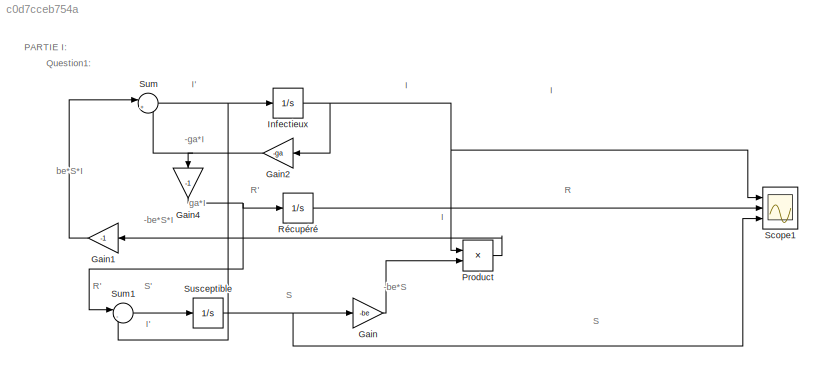
MODEL slx_c0d7cceb754a
KIND model
CONFIG AbsTol = auto
CONFIG EnableMultiTasking = off
CONFIG FixedStep = auto
CONFIG MaxStep = auto
CONFIG MinStep = auto
CONFIG RelTol = 1e-3
CONFIG SampleTimeConstraint = Unconstrained
CONFIG Solver = ode45
CONFIG SolverName = ode45
CONFIG StartTime = 0.0
CONFIG StopTime = 30
BLOCK [Gain] Gain
  Gain = -be
BLOCK [Gain] Gain1
  Gain = -1
  NameLocation = top
BLOCK [Gain] Gain2
  Gain = -ga
  NameLocation = top
BLOCK [Gain] Gain4
  Gain = -1
  NameLocation = left
BLOCK [Integrator] Infectieux
  InitialCondition = i0
  Ports = [1, 1]
BLOCK [Product] Product
  Ports = [2, 1]
BLOCK [Integrator] Récupéré
  InitialCondition = r0
  Ports = [1, 1]
BLOCK [Scope] Scope1
  Floating = off
  NumInputPorts = 3
  Ports = [3]
  ScopeSpecificationString = Simulink.scopes.TimeScopeBlockCfg('CurrentConfiguration', extmgr.ConfigurationSet(extmgr.Configuration('Core','General UI',true),extmgr.Configuration('Core','Source UI',true),extmgr.Configuration('Sources','WiredSimulink',true,'DataLoggingVariableName','ScopeData1'),extmgr.Configuration('Visuals','Time Domain',true,'SerializedDisplays',{struct('MinYLimReal','-0.125','MaxYLimReal','0.33523','YLabel...<+1538ch>
BLOCK [Sum] Sum
  Inputs = |++
  Ports = [2, 1]
BLOCK [Sum] Sum1
  Inputs = |--
  Ports = [2, 1]
BLOCK [Integrator] Susceptible
  InitialCondition = s0
  Ports = [1, 1]
ANNOTATION (root): -be*S
ANNOTATION (root): -be*S*I
ANNOTATION (root): -ga*I
ANNOTATION (root): PARTIE I:
ANNOTATION (root): Question1:
ANNOTATION (root): I
ANNOTATION (root): I'
ANNOTATION (root): R
ANNOTATION (root): R'
ANNOTATION (root): S
ANNOTATION (root): S'
ANNOTATION (root): be*S*I
ANNOTATION (root): ga*I
LINE Gain1:1 -> Sum:1
NET Gain2:1 -> Gain4:1, Sum:2
NET Gain4:1 -> Récupéré:1, Sum1:1
LINE Gain:1 -> Product:2
NET Infectieux:1 -> Gain2:1, Product:1, Scope1:1
LINE Product:1 -> Gain1:1
LINE Récupéré:1 -> Scope1:2
LINE Sum1:1 -> Susceptible:1
NET Sum:1 -> Infectieux:1, Sum1:2
NET Susceptible:1 -> Gain:1, Scope1:3
note: NET lines group one-source signal fan-out (src -> all destinations, sorted); 1:1 wires keep LINE
